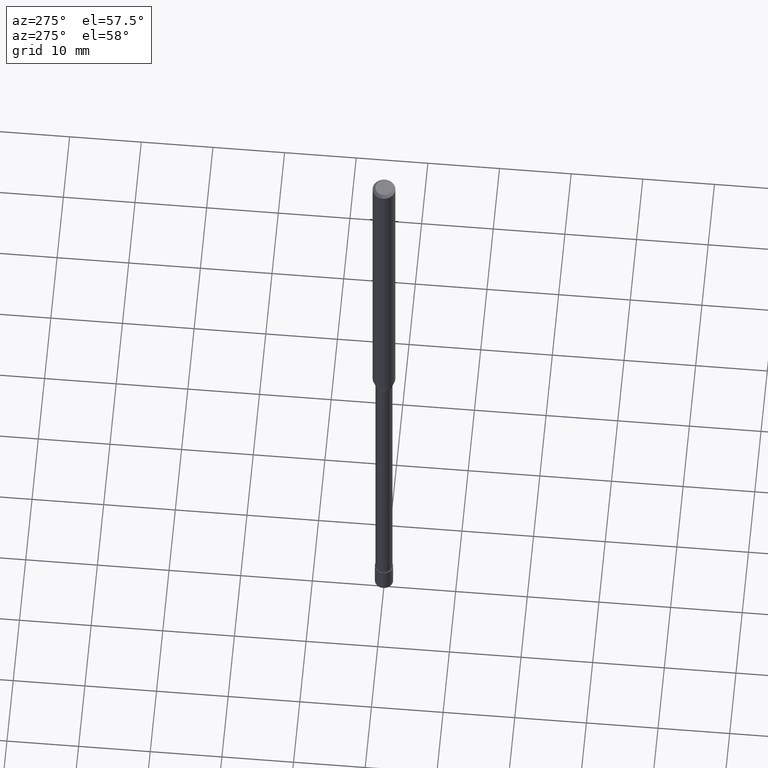
[diagram: clean part render]
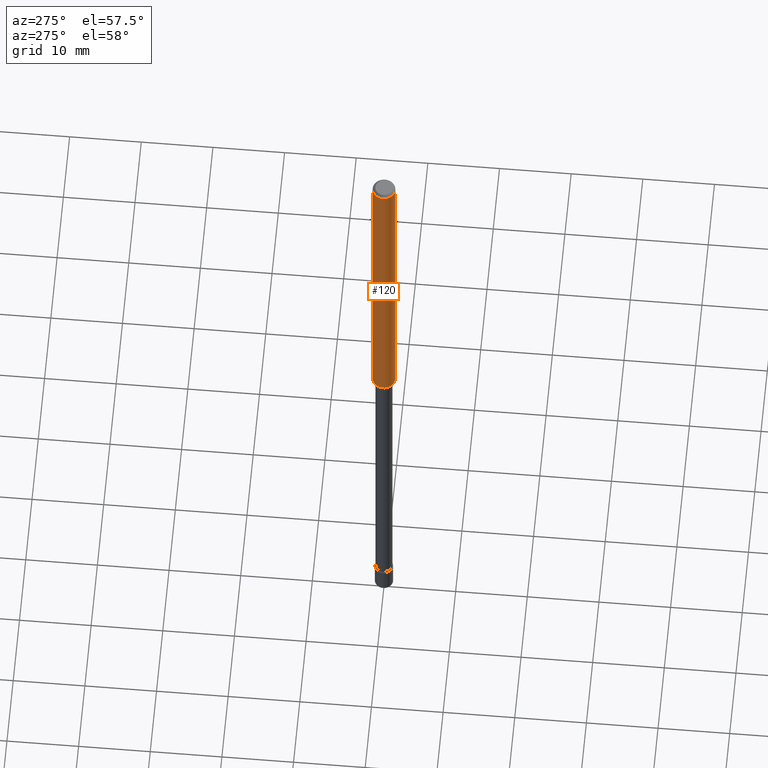
[diagram: same view with one face highlighted and labeled with its STEP entity id]
A machine part, auxiliary view. The second image highlights one B-rep face of the part: STEP entity #120.
In plain terms, the highlighted cylindrical surface (edge-blend (fillet) strip) has radius 1.5875 mm, axis along (-0, 0, 1).
Its self-contained STEP definition (entity closure, byte-faithful):
#2 = EDGE_CURVE ( 'NONE', #498, #446, #419, .T. ) ;
#5 = LINE ( 'NONE', #363, #327 ) ;
#6 = AXIS2_PLACEMENT_3D ( 'NONE', #278, #150, #358 ) ;
#26 = CARTESIAN_POINT ( 'NONE',  ( 0.000000000000000000, 0.000000000000000000, 0.000000000000000000 ) ) ;
#39 = DIRECTION ( 'NONE',  ( -2.445449410952095360E-29, 3.491509113920768834E-15, 1.000000000000000000 ) ) ;
#97 = VERTEX_POINT ( 'NONE', #431 ) ;
#107 = DIRECTION ( 'NONE',  ( -6.982962677686265922E-15, -1.000000000000000000, 3.483106191921935554E-15 ) ) ;
#120 = ADVANCED_FACE ( 'NONE', ( #142 ), #388, .T. ) ;
#142 = FACE_OUTER_BOUND ( 'NONE', #400, .T. ) ;
#150 = DIRECTION ( 'NONE',  ( -2.445449410952095360E-29, 3.491509113920768834E-15, 1.000000000000000000 ) ) ;
#167 = CARTESIAN_POINT ( 'NONE',  ( -4.364351673553916201E-16, -0.06250000000000000000, 2.182193196200480521E-16 ) ) ;
#185 = DIRECTION ( 'NONE',  ( -2.445449410952095360E-29, 3.491509113920768834E-15, 1.000000000000000000 ) ) ;
#188 = EDGE_CURVE ( 'NONE', #255, #446, #455, .T. ) ;
#216 = EDGE_CURVE ( 'NONE', #97, #498, #227, .T. ) ;
#227 = CIRCLE ( 'NONE', #6, 0.06250000000000000000 ) ;
#232 = VECTOR ( 'NONE', #264, 39.37007874015748143 ) ;
#234 = DIRECTION ( 'NONE',  ( -2.445449410952095360E-29, 3.491509113920768834E-15, 1.000000000000000000 ) ) ;
#251 = ORIENTED_EDGE ( 'NONE', *, *, #295, .F. ) ;
#255 = VERTEX_POINT ( 'NONE', #321 ) ;
#264 = DIRECTION ( 'NONE',  ( -2.445449410952095360E-29, 3.491509113920768834E-15, 1.000000000000000000 ) ) ;
#274 = AXIS2_PLACEMENT_3D ( 'NONE', #26, #185, #391 ) ;
#278 = CARTESIAN_POINT ( 'NONE',  ( 4.749437429444495691E-29, -6.781045642013784407E-15, -1.942153212482682578 ) ) ;
#295 = EDGE_CURVE ( 'NONE', #97, #255, #5, .T. ) ;
#321 = CARTESIAN_POINT ( 'NONE',  ( 4.440892098501103423E-16, 0.06249999999999993755, -0.01500000000000024751 ) ) ;
#327 = VECTOR ( 'NONE', #39, 39.37007874015748143 ) ;
#336 = ORIENTED_EDGE ( 'NONE', *, *, #188, .F. ) ;
#340 = ORIENTED_EDGE ( 'NONE', *, *, #2, .T. ) ;
#350 = CARTESIAN_POINT ( 'NONE',  ( 3.668174116428150344E-31, -5.237263670881164147E-17, -0.01500000000000003067 ) ) ;
#358 = DIRECTION ( 'NONE',  ( -6.982962677686265922E-15, -1.000000000000000000, 4.370956789862821150E-15 ) ) ;
#363 = CARTESIAN_POINT ( 'NONE',  ( 4.440892098500625669E-16, 0.06250000000000000000, -2.182193196200480521E-16 ) ) ;
#364 = CARTESIAN_POINT ( 'NONE',  ( -4.364351673553438940E-16, -0.06250000000000674460, -1.942153212482682134 ) ) ;
#388 = CYLINDRICAL_SURFACE ( 'NONE', #274, 0.06250000000000000000 ) ;
#391 = DIRECTION ( 'NONE',  ( -6.982962677686265922E-15, -1.000000000000000000, 3.491509113920768834E-15 ) ) ;
#400 = EDGE_LOOP ( 'NONE', ( #251, #457, #340, #336 ) ) ;
#419 = LINE ( 'NONE', #167, #232 ) ;
#431 = CARTESIAN_POINT ( 'NONE',  ( 4.440892098501102436E-16, 0.06249999999999325540, -1.942153212482682800 ) ) ;
#440 = AXIS2_PLACEMENT_3D ( 'NONE', #350, #234, #107 ) ;
#446 = VERTEX_POINT ( 'NONE', #473 ) ;
#455 = CIRCLE ( 'NONE', #440, 0.06250000000000000000 ) ;
#457 = ORIENTED_EDGE ( 'NONE', *, *, #216, .T. ) ;
#473 = CARTESIAN_POINT ( 'NONE',  ( -4.364351673553912750E-16, -0.06250000000000005551, -0.01499999999999981209 ) ) ;
#498 = VERTEX_POINT ( 'NONE', #364 ) ;